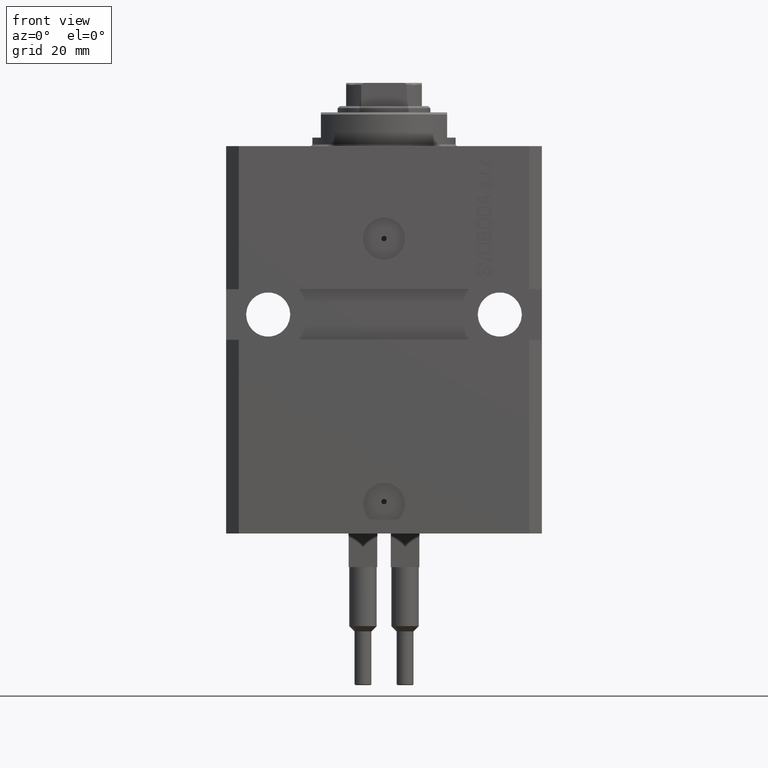
[diagram: clean part render]
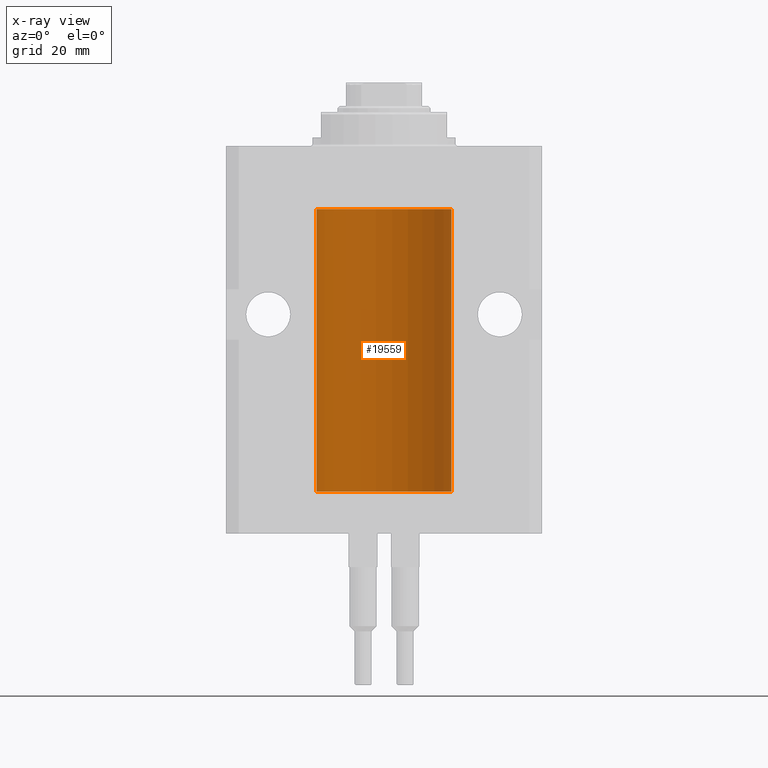
[diagram: x-ray — body ghosted, one internal face saturated and labeled with its STEP entity id]
A machine part, front view, then the same camera in x-ray: the body is ghosted and one INTERNAL B-rep face — a face not visible from any outside direction — is saturated and labeled: STEP entity #19559.
In plain terms, the highlighted cylindrical surface (partial cylindrical patch) has radius 16 mm, axis along (0, 0, 1).
Its self-contained STEP definition (entity closure, byte-faithful):
#127 = CARTESIAN_POINT ( 'NONE',  ( -15.98779057735153941, 0.6249419637998042676, -79.83670145863506207 ) ) ;
#405 = AXIS2_PLACEMENT_3D ( 'NONE', #10300, #36129, #25162 ) ;
#876 = CYLINDRICAL_SURFACE ( 'NONE', #40992, 16.00000000000000000 ) ;
#913 = CARTESIAN_POINT ( 'NONE',  ( 16.00000000000013145, 3.665532684555111376E-13, -21.37499999999658229 ) ) ;
#1146 = CARTESIAN_POINT ( 'NONE',  ( -16.00000000000000000, 1.959434878635765131E-15, -15.00000000000000000 ) ) ;
#1239 = CARTESIAN_POINT ( 'NONE',  ( 15.98778830858070954, 0.6250000000080517815, -79.99999999999916156 ) ) ;
#1399 = CARTESIAN_POINT ( 'NONE',  ( 15.99070695999104252, 0.5461439696926363441, -21.68526802364053552 ) ) ;
#1478 = CARTESIAN_POINT ( 'NONE',  ( 15.98778830858103817, 0.6249999999997223332, -79.91847885046215083 ) ) ;
#1524 = EDGE_CURVE ( 'NONE', #32896, #40605, #3515, .T. ) ;
#1724 = CARTESIAN_POINT ( 'NONE',  ( 16.00000000000000711, 0.08261762387942241104, -22.62499999999997158 ) ) ;
#2226 = EDGE_CURVE ( 'NONE', #33773, #14670, #26352, .T. ) ;
#2452 = EDGE_CURVE ( 'NONE', #32992, #32185, #12670, .T. ) ;
#2475 = VECTOR ( 'NONE', #7542, 1000.000000000000000 ) ;
#3515 = B_SPLINE_CURVE_WITH_KNOTS ( 'NONE', 3,
 ( #1239, #1478, #16324, #27554, #42415, #9273, #4891, #31201 ),
 .UNSPECIFIED., .F., .F.,
 ( 4, 2, 2, 4 ),
 ( 0.0009773326288700682433, 0.001221554802188685399, 0.001465776975507302772, 0.001954221322144537518 ),
 .UNSPECIFIED. ) ;
#3533 = CARTESIAN_POINT ( 'NONE',  ( -15.99228023727723702, 0.5003781296993381478, -80.38347829554234636 ) ) ;
#3780 = CARTESIAN_POINT ( 'NONE',  ( -15.99999999999999645, 0.1631714642025803297, -80.62499999999987210 ) ) ;
#4119 = CARTESIAN_POINT ( 'NONE',  ( 16.00000000000000000, 0.000000000000000000, -15.00000000000000000 ) ) ;
#4216 = CARTESIAN_POINT ( 'NONE',  ( -15.99548640841683067, 0.3843705577988847377, -21.50046628527008608 ) ) ;
#4563 = CARTESIAN_POINT ( 'NONE',  ( 15.98778830858070954, 0.6250000000079481977, -21.99999999999914735 ) ) ;
#4861 = VECTOR ( 'NONE', #42941, 1000.000000000000000 ) ;
#4891 = CARTESIAN_POINT ( 'NONE',  ( 15.99999999999999645, 0.1631343969470158417, -79.37500000000019895 ) ) ;
#5576 = CARTESIAN_POINT ( 'NONE',  ( -16.00000000000000000, 1.959434878635765131E-15, -82.09999999999999432 ) ) ;
#5649 = ORIENTED_EDGE ( 'NONE', *, *, #1524, .T. ) ;
#6425 = CARTESIAN_POINT ( 'NONE',  ( -16.00000000000000000, 1.959434878635765131E-15, -82.09999999999999432 ) ) ;
#6430 = B_SPLINE_CURVE_WITH_KNOTS ( 'NONE', 3,
 ( #11457, #37275, #17785, #26323, #41177, #25337, #7811, #10722 ),
 .UNSPECIFIED., .F., .F.,
 ( 4, 2, 2, 4 ),
 ( 1.783888443149829469E-18, 0.0002443331572175111519, 0.0004886663144350204607, 0.0009773326288700682433 ),
 .UNSPECIFIED. ) ;
#6582 = VECTOR ( 'NONE', #32249, 1000.000000000000000 ) ;
#6958 = CARTESIAN_POINT ( 'NONE',  ( -16.00000000000000000, 0.08259886010188878525, -79.37500000000000000 ) ) ;
#7542 = DIRECTION ( 'NONE',  ( -0.000000000000000000, -0.000000000000000000, 1.000000000000000000 ) ) ;
#7643 = CARTESIAN_POINT ( 'NONE',  ( -16.00000000000000000, 0.1631714642025800244, -22.62499999999985789 ) ) ;
#7799 = B_SPLINE_CURVE_WITH_KNOTS ( 'NONE', 3,
 ( #11334, #6958, #22050, #44480, #21799, #26439, #127, #37155, #36664, #40808, #3533, #11088, #3780, #18636 ),
 .UNSPECIFIED., .F., .F.,
 ( 4, 2, 2, 2, 2, 2, 4 ),
 ( 9.627260067324177505E-19, 0.0002442776652680926142, 0.0004885553305361842527, 0.0009771106610723672044, 0.001221388326340458897, 0.001465665991608550373, 0.001954221322144762598 ),
 .UNSPECIFIED. ) ;
#7800 = ORIENTED_EDGE ( 'NONE', *, *, #30850, .T. ) ;
#7811 = CARTESIAN_POINT ( 'NONE',  ( 15.98778830858101152, 0.6250000000002222666, -80.16311639173022741 ) ) ;
#8182 = EDGE_CURVE ( 'NONE', #44758, #16264, #25112, .T. ) ;
#8696 = CARTESIAN_POINT ( 'NONE',  ( 16.00000000000000000, -1.835653844722709729E-15, -80.62500000000000000 ) ) ;
#8941 = EDGE_CURVE ( 'NONE', #25431, #11306, #12479, .T. ) ;
#9273 = CARTESIAN_POINT ( 'NONE',  ( 15.99711856062700477, 0.3252985083514284281, -79.44140297987711108 ) ) ;
#9997 = CARTESIAN_POINT ( 'NONE',  ( 16.00000000000000000, 0.000000000000000000, -82.09999999999999432 ) ) ;
#10300 = CARTESIAN_POINT ( 'NONE',  ( 0.000000000000000000, 0.000000000000000000, -82.09999999999999432 ) ) ;
#10722 = CARTESIAN_POINT ( 'NONE',  ( 15.98778830858070954, 0.6250000000080517815, -79.99999999999916156 ) ) ;
#10766 = ORIENTED_EDGE ( 'NONE', *, *, #12253, .F. ) ;
#11039 = CARTESIAN_POINT ( 'NONE',  ( -16.00000000000013145, 3.685127034031037939E-13, -22.62500000000341771 ) ) ;
#11088 = CARTESIAN_POINT ( 'NONE',  ( -15.99711699979841661, 0.3253759916140634423, -80.55856151623176231 ) ) ;
#11286 = CARTESIAN_POINT ( 'NONE',  ( -15.99707730059171240, 0.3150375992092407373, -21.45402333202571654 ) ) ;
#11306 = VERTEX_POINT ( 'NONE', #24379 ) ;
#11334 = CARTESIAN_POINT ( 'NONE',  ( -16.00000000000000000, -1.078783706743908645E-14, -79.37500000000000000 ) ) ;
#11437 = VERTEX_POINT ( 'NONE', #4119 ) ;
#11457 = CARTESIAN_POINT ( 'NONE',  ( 16.00000000000000000, -1.835653844722709729E-15, -80.62500000000000000 ) ) ;
#11516 = CARTESIAN_POINT ( 'NONE',  ( 15.98778830858070954, 0.6250000000080517815, -79.99999999999916156 ) ) ;
#11529 = CARTESIAN_POINT ( 'NONE',  ( -15.99070426498503217, 0.5462220647145618058, -22.31460064614143590 ) ) ;
#12253 = EDGE_CURVE ( 'NONE', #25431, #39867, #28125, .T. ) ;
#12479 = B_SPLINE_CURVE_WITH_KNOTS ( 'NONE', 3,
 ( #30058, #15177, #40759, #11286, #4216, #36858, #41495, #37106, #22735, #11529, #19078, #44190, #7643, #11039 ),
 .UNSPECIFIED., .F., .F.,
 ( 4, 2, 2, 2, 2, 2, 4 ),
 ( 1.597328219370744179E-19, 0.0002442776652680942405, 0.0004885553305361882643, 0.0009771106610723839011, 0.001221388326340481665, 0.001465665991608579430, 0.001954221322144767369 ),
 .UNSPECIFIED. ) ;
#12670 = B_SPLINE_CURVE_WITH_KNOTS ( 'NONE', 3,
 ( #19761, #1724, #16579, #46317, #12933, #34618, #31929, #36047 ),
 .UNSPECIFIED., .F., .F.,
 ( 4, 2, 2, 4 ),
 ( 6.538667818360814107E-19, 0.0002443331572174917989, 0.0004886663144349829473, 0.0009773326288699728335 ),
 .UNSPECIFIED. ) ;
#12691 = EDGE_CURVE ( 'NONE', #16264, #32896, #6430, .T. ) ;
#12933 = CARTESIAN_POINT ( 'NONE',  ( 15.99548458234361092, 0.3844468804815581731, -22.49947786696349894 ) ) ;
#13122 = LINE ( 'NONE', #20196, #31549 ) ;
#13186 = CARTESIAN_POINT ( 'NONE',  ( 15.98778830858070954, 0.6250000000079481977, -21.99999999999914735 ) ) ;
#13672 = CARTESIAN_POINT ( 'NONE',  ( 16.00000000000000000, 0.000000000000000000, -82.09999999999999432 ) ) ;
#14670 = VERTEX_POINT ( 'NONE', #39301 ) ;
#15177 = CARTESIAN_POINT ( 'NONE',  ( -16.00000000000000711, 0.08259886010189904093, -21.37500000000000000 ) ) ;
#15798 = LINE ( 'NONE', #30199, #2475 ) ;
#15993 = ORIENTED_EDGE ( 'NONE', *, *, #42251, .T. ) ;
#16264 = VERTEX_POINT ( 'NONE', #8696 ) ;
#16324 = CARTESIAN_POINT ( 'NONE',  ( 15.98844460043491367, 0.6087869699337551399, -79.83657454967556077 ) ) ;
#16579 = CARTESIAN_POINT ( 'NONE',  ( 15.99934183755190986, 0.1636877470526783007, -22.60872690654068151 ) ) ;
#16846 = CARTESIAN_POINT ( 'NONE',  ( 16.00000000000000000, 6.728408811789801767E-16, -22.62500000000000000 ) ) ;
#17785 = CARTESIAN_POINT ( 'NONE',  ( 15.99934183755190986, 0.1636877470527013101, -80.60872690654072414 ) ) ;
#18636 = CARTESIAN_POINT ( 'NONE',  ( -16.00000000000013145, 3.685127046438747128E-13, -80.62500000000342482 ) ) ;
#19078 = CARTESIAN_POINT ( 'NONE',  ( -15.99228023727724413, 0.5003781296993413674, -22.38347829554236057 ) ) ;
#19559 = ADVANCED_FACE ( 'NONE', ( #37903 ), #876, .F. ) ;
#19761 = CARTESIAN_POINT ( 'NONE',  ( 16.00000000000000000, 6.728408811789801767E-16, -22.62500000000000000 ) ) ;
#20196 = CARTESIAN_POINT ( 'NONE',  ( 16.00000000000000000, 0.000000000000000000, -82.09999999999999432 ) ) ;
#21799 = CARTESIAN_POINT ( 'NONE',  ( -15.99548640841683067, 0.3843705577988806854, -79.50046628527009318 ) ) ;
#22050 = CARTESIAN_POINT ( 'NONE',  ( -15.99934216141748244, 0.1636497843296330912, -79.39126528029309782 ) ) ;
#22735 = CARTESIAN_POINT ( 'NONE',  ( -15.98844267028591482, 0.6088369347963316081, -22.16324735024328518 ) ) ;
#22874 = EDGE_LOOP ( 'NONE', ( #31231, #33283, #24361, #46758, #5649, #36287, #41592, #40828, #7800, #15993, #10766, #41812, #43613, #44826 ) ) ;
#23843 = LINE ( 'NONE', #5576, #46175 ) ;
#24093 = DIRECTION ( 'NONE',  ( -0.000000000000000000, -0.000000000000000000, 1.000000000000000000 ) ) ;
#24361 = ORIENTED_EDGE ( 'NONE', *, *, #8182, .T. ) ;
#24379 = CARTESIAN_POINT ( 'NONE',  ( -16.00000000000013145, 3.685127034031037939E-13, -22.62500000000341771 ) ) ;
#24442 = AXIS2_PLACEMENT_3D ( 'NONE', #25034, #47453, #28473 ) ;
#25034 = CARTESIAN_POINT ( 'NONE',  ( 0.000000000000000000, 0.000000000000000000, -15.00000000000000000 ) ) ;
#25112 = LINE ( 'NONE', #13672, #4861 ) ;
#25162 = DIRECTION ( 'NONE',  ( 1.000000000000000000, 0.000000000000000000, 0.000000000000000000 ) ) ;
#25337 = CARTESIAN_POINT ( 'NONE',  ( 15.99070366873610638, 0.5574063959867601170, -80.32639436837554570 ) ) ;
#25431 = VERTEX_POINT ( 'NONE', #46185 ) ;
#26138 = EDGE_CURVE ( 'NONE', #48197, #14670, #7799, .T. ) ;
#26323 = CARTESIAN_POINT ( 'NONE',  ( 15.99707608081895138, 0.3151028052310259620, -80.54594170697731670 ) ) ;
#26352 = LINE ( 'NONE', #41205, #41351 ) ;
#26439 = CARTESIAN_POINT ( 'NONE',  ( -15.99070653155268396, 0.5573233280232950948, -79.67348148680505915 ) ) ;
#26986 = CARTESIAN_POINT ( 'NONE',  ( 15.98844460043492077, 0.6087869699336542206, -21.83657454967558564 ) ) ;
#27513 = DIRECTION ( 'NONE',  ( -0.000000000000000000, -0.000000000000000000, 1.000000000000000000 ) ) ;
#27554 = CARTESIAN_POINT ( 'NONE',  ( 15.99070695999103542, 0.5461439696927204990, -79.68526802364046091 ) ) ;
#27708 = CARTESIAN_POINT ( 'NONE',  ( 16.00000000000013145, 3.665532692826917502E-13, -79.37499999999657518 ) ) ;
#28125 = LINE ( 'NONE', #6425, #6582 ) ;
#28473 = DIRECTION ( 'NONE',  ( 1.000000000000000000, 0.000000000000000000, 0.000000000000000000 ) ) ;
#30058 = CARTESIAN_POINT ( 'NONE',  ( -16.00000000000000000, 1.643679961284177128E-16, -21.37499999999999645 ) ) ;
#30199 = CARTESIAN_POINT ( 'NONE',  ( 16.00000000000000000, 0.000000000000000000, -82.09999999999999432 ) ) ;
#30613 = CARTESIAN_POINT ( 'NONE',  ( 0.000000000000000000, 0.000000000000000000, -82.09999999999999432 ) ) ;
#30677 = CIRCLE ( 'NONE', #24442, 16.00000000000000000 ) ;
#30848 = DIRECTION ( 'NONE',  ( -0.000000000000000000, -0.000000000000000000, 1.000000000000000000 ) ) ;
#30850 = EDGE_CURVE ( 'NONE', #37425, #11437, #15798, .T. ) ;
#31201 = CARTESIAN_POINT ( 'NONE',  ( 16.00000000000013145, 3.665532692826917502E-13, -79.37499999999657518 ) ) ;
#31231 = ORIENTED_EDGE ( 'NONE', *, *, #2226, .F. ) ;
#31549 = VECTOR ( 'NONE', #24093, 1000.000000000000000 ) ;
#31929 = CARTESIAN_POINT ( 'NONE',  ( 15.98778830858101685, 0.6250000000001204592, -22.16311639173018833 ) ) ;
#32185 = VERTEX_POINT ( 'NONE', #13186 ) ;
#32249 = DIRECTION ( 'NONE',  ( -0.000000000000000000, -0.000000000000000000, 1.000000000000000000 ) ) ;
#32896 = VERTEX_POINT ( 'NONE', #11516 ) ;
#32992 = VERTEX_POINT ( 'NONE', #16846 ) ;
#33283 = ORIENTED_EDGE ( 'NONE', *, *, #43873, .F. ) ;
#33773 = VERTEX_POINT ( 'NONE', #44007 ) ;
#34134 = DIRECTION ( 'NONE',  ( -0.000000000000000000, -0.000000000000000000, 1.000000000000000000 ) ) ;
#34281 = CARTESIAN_POINT ( 'NONE',  ( 15.99228275317787507, 0.5002975944204000047, -21.61642014570181303 ) ) ;
#34618 = CARTESIAN_POINT ( 'NONE',  ( 15.99070366873610993, 0.5574063959866685236, -22.32639436837549951 ) ) ;
#35631 = CARTESIAN_POINT ( 'NONE',  ( 16.00000000000013145, 3.665532684555111376E-13, -21.37499999999658229 ) ) ;
#36047 = CARTESIAN_POINT ( 'NONE',  ( 15.98778830858070954, 0.6250000000079481977, -21.99999999999914735 ) ) ;
#36129 = DIRECTION ( 'NONE',  ( 0.000000000000000000, 0.000000000000000000, 1.000000000000000000 ) ) ;
#36287 = ORIENTED_EDGE ( 'NONE', *, *, #40264, .T. ) ;
#36664 = CARTESIAN_POINT ( 'NONE',  ( -15.98844267028591837, 0.6088369347963302758, -80.16324735024328163 ) ) ;
#36858 = CARTESIAN_POINT ( 'NONE',  ( -15.99070653155267685, 0.5573233280232986475, -21.67348148680506625 ) ) ;
#37106 = CARTESIAN_POINT ( 'NONE',  ( -15.98778717651346071, 0.6250289588122140971, -22.08131585687052478 ) ) ;
#37155 = CARTESIAN_POINT ( 'NONE',  ( -15.98778717651346426, 0.6250289588122123208, -80.08131585687053189 ) ) ;
#37275 = CARTESIAN_POINT ( 'NONE',  ( 16.00000000000000711, 0.08261762387943046015, -80.62499999999998579 ) ) ;
#37425 = VERTEX_POINT ( 'NONE', #35631 ) ;
#37903 = FACE_OUTER_BOUND ( 'NONE', #22874, .T. ) ;
#37938 = CARTESIAN_POINT ( 'NONE',  ( 15.99711856062700122, 0.3252985083513915687, -21.44140297987714661 ) ) ;
#38138 = DIRECTION ( 'NONE',  ( 1.000000000000000000, 0.000000000000000000, 0.000000000000000000 ) ) ;
#38536 = EDGE_CURVE ( 'NONE', #48197, #11306, #23843, .T. ) ;
#38904 = CARTESIAN_POINT ( 'NONE',  ( 15.98778830858104172, 0.6249999999996183053, -21.91847885046212951 ) ) ;
#39301 = CARTESIAN_POINT ( 'NONE',  ( -16.00000000000013145, 3.685127046438747128E-13, -80.62500000000342482 ) ) ;
#39867 = VERTEX_POINT ( 'NONE', #1146 ) ;
#40065 = CIRCLE ( 'NONE', #405, 16.00000000000000000 ) ;
#40264 = EDGE_CURVE ( 'NONE', #40605, #32992, #13122, .T. ) ;
#40605 = VERTEX_POINT ( 'NONE', #27708 ) ;
#40759 = CARTESIAN_POINT ( 'NONE',  ( -15.99934216141748244, 0.1636497843296417787, -21.39126528029306229 ) ) ;
#40808 = CARTESIAN_POINT ( 'NONE',  ( -15.99070426498502506, 0.5462220647145631380, -80.31460064614142880 ) ) ;
#40828 = ORIENTED_EDGE ( 'NONE', *, *, #43438, .T. ) ;
#40992 = AXIS2_PLACEMENT_3D ( 'NONE', #30613, #30848, #38138 ) ;
#41177 = CARTESIAN_POINT ( 'NONE',  ( 15.99548458234361092, 0.3844468804816182916, -80.49947786696354513 ) ) ;
#41205 = CARTESIAN_POINT ( 'NONE',  ( -16.00000000000000000, 1.959434878635765131E-15, -82.09999999999999432 ) ) ;
#41351 = VECTOR ( 'NONE', #34134, 1000.000000000000000 ) ;
#41489 = CARTESIAN_POINT ( 'NONE',  ( -16.00000000000000000, -1.078783706743908645E-14, -79.37500000000000000 ) ) ;
#41495 = CARTESIAN_POINT ( 'NONE',  ( -15.98779057735153941, 0.6249419637998100407, -21.83670145863507273 ) ) ;
#41592 = ORIENTED_EDGE ( 'NONE', *, *, #2452, .T. ) ;
#41702 = B_SPLINE_CURVE_WITH_KNOTS ( 'NONE', 3,
 ( #4563, #38904, #26986, #1399, #34281, #37938, #42574, #913 ),
 .UNSPECIFIED., .F., .F.,
 ( 4, 2, 2, 4 ),
 ( 0.0009773326288699728335, 0.001221554802188567438, 0.001465776975507162259, 0.001954221322144344530 ),
 .UNSPECIFIED. ) ;
#41812 = ORIENTED_EDGE ( 'NONE', *, *, #8941, .T. ) ;
#42251 = EDGE_CURVE ( 'NONE', #11437, #39867, #30677, .T. ) ;
#42415 = CARTESIAN_POINT ( 'NONE',  ( 15.99228275317786441, 0.5002975944204781644, -79.61642014570176684 ) ) ;
#42574 = CARTESIAN_POINT ( 'NONE',  ( 15.99999999999999289, 0.1631343969470015476, -21.37500000000020606 ) ) ;
#42941 = DIRECTION ( 'NONE',  ( -0.000000000000000000, -0.000000000000000000, 1.000000000000000000 ) ) ;
#43438 = EDGE_CURVE ( 'NONE', #32185, #37425, #41702, .T. ) ;
#43613 = ORIENTED_EDGE ( 'NONE', *, *, #38536, .F. ) ;
#43873 = EDGE_CURVE ( 'NONE', #44758, #33773, #40065, .T. ) ;
#44007 = CARTESIAN_POINT ( 'NONE',  ( -16.00000000000000000, 1.959434878635765131E-15, -82.09999999999999432 ) ) ;
#44190 = CARTESIAN_POINT ( 'NONE',  ( -15.99711699979842017, 0.3253759916140657737, -22.55856151623175521 ) ) ;
#44480 = CARTESIAN_POINT ( 'NONE',  ( -15.99707730059171595, 0.3150375992092318000, -79.45402333202572720 ) ) ;
#44758 = VERTEX_POINT ( 'NONE', #9997 ) ;
#44826 = ORIENTED_EDGE ( 'NONE', *, *, #26138, .T. ) ;
#46175 = VECTOR ( 'NONE', #27513, 1000.000000000000000 ) ;
#46185 = CARTESIAN_POINT ( 'NONE',  ( -16.00000000000000000, 1.643679961284177128E-16, -21.37499999999999645 ) ) ;
#46317 = CARTESIAN_POINT ( 'NONE',  ( 15.99707608081894783, 0.3151028052309810534, -22.54594170697727762 ) ) ;
#46758 = ORIENTED_EDGE ( 'NONE', *, *, #12691, .T. ) ;
#47453 = DIRECTION ( 'NONE',  ( 0.000000000000000000, 0.000000000000000000, 1.000000000000000000 ) ) ;
#48197 = VERTEX_POINT ( 'NONE', #41489 ) ;